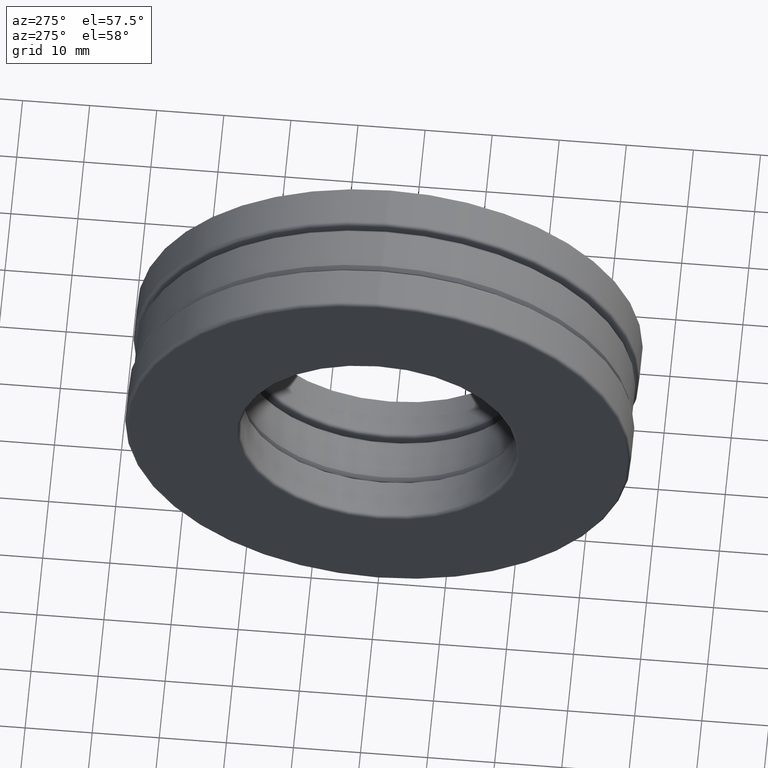
[diagram: clean part render]
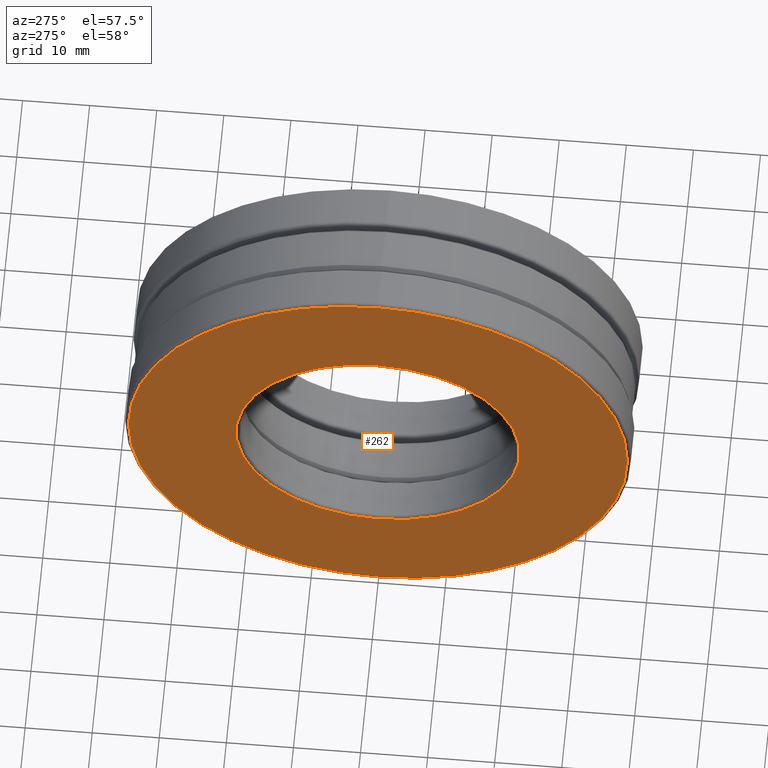
[diagram: same view with one face highlighted and labeled with its STEP entity id]
A machine part, auxiliary view. The second image highlights one B-rep face of the part: STEP entity #262.
In plain terms, the highlighted planar face has unit normal (1, 0, 0).
Its self-contained STEP definition (entity closure, byte-faithful):
#179 = CARTESIAN_POINT ( 'NONE',  ( -0.4059999999999999700, 0.0000000000000000000, 0.0000000000000000000 ) ) ;
#243 = VERTEX_POINT ( 'NONE', #1132 ) ;
#262 = ADVANCED_FACE ( 'NONE', ( #934, #270 ), #563, .F. ) ;
#270 = FACE_OUTER_BOUND ( 'NONE', #454, .T. ) ;
#296 = DIRECTION ( 'NONE',  ( 0.0000000000000000000, 0.0000000000000000000, 1.000000000000000000 ) ) ;
#412 = DIRECTION ( 'NONE',  ( -1.000000000000000000, -0.0000000000000000000, -0.0000000000000000000 ) ) ;
#454 = EDGE_LOOP ( 'NONE', ( #660 ) ) ;
#460 = CARTESIAN_POINT ( 'NONE',  ( -0.4059999999999999700, 4.388250387448827500E-017, 0.0000000000000000000 ) ) ;
#517 = CIRCLE ( 'NONE', #712, 1.464375000000000200 ) ;
#533 = CARTESIAN_POINT ( 'NONE',  ( -0.4060000000000000300, 0.0000000000000000000, 0.0000000000000000000 ) ) ;
#563 = PLANE ( 'NONE',  #642 ) ;
#642 = AXIS2_PLACEMENT_3D ( 'NONE', #460, #703, #1246 ) ;
#660 = ORIENTED_EDGE ( 'NONE', *, *, #816, .T. ) ;
#703 = DIRECTION ( 'NONE',  ( 1.000000000000000000, 0.0000000000000000000, 0.0000000000000000000 ) ) ;
#712 = AXIS2_PLACEMENT_3D ( 'NONE', #179, #412, #1312 ) ;
#774 = EDGE_CURVE ( 'NONE', #1125, #1125, #824, .T. ) ;
#816 = EDGE_CURVE ( 'NONE', #243, #243, #517, .T. ) ;
#824 = CIRCLE ( 'NONE', #1397, 0.8325000000000000200 ) ;
#934 = FACE_BOUND ( 'NONE', #1309, .T. ) ;
#1082 = DIRECTION ( 'NONE',  ( -1.000000000000000000, -0.0000000000000000000, -0.0000000000000000000 ) ) ;
#1125 = VERTEX_POINT ( 'NONE', #1273 ) ;
#1132 = CARTESIAN_POINT ( 'NONE',  ( -0.4059999999999999700, 0.0000000000000000000, 1.464375000000000200 ) ) ;
#1236 = ORIENTED_EDGE ( 'NONE', *, *, #774, .F. ) ;
#1246 = DIRECTION ( 'NONE',  ( 0.0000000000000000000, 0.0000000000000000000, -1.000000000000000000 ) ) ;
#1273 = CARTESIAN_POINT ( 'NONE',  ( -0.4060000000000000300, 0.0000000000000000000, 0.8325000000000000200 ) ) ;
#1309 = EDGE_LOOP ( 'NONE', ( #1236 ) ) ;
#1312 = DIRECTION ( 'NONE',  ( 0.0000000000000000000, 0.0000000000000000000, 1.000000000000000000 ) ) ;
#1397 = AXIS2_PLACEMENT_3D ( 'NONE', #533, #1082, #296 ) ;